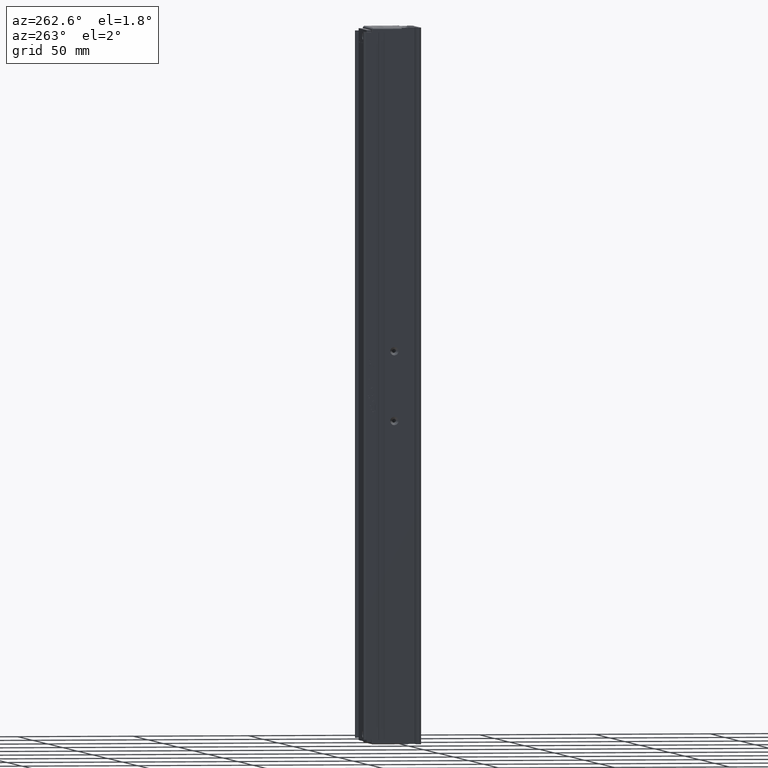
[diagram: clean part render]
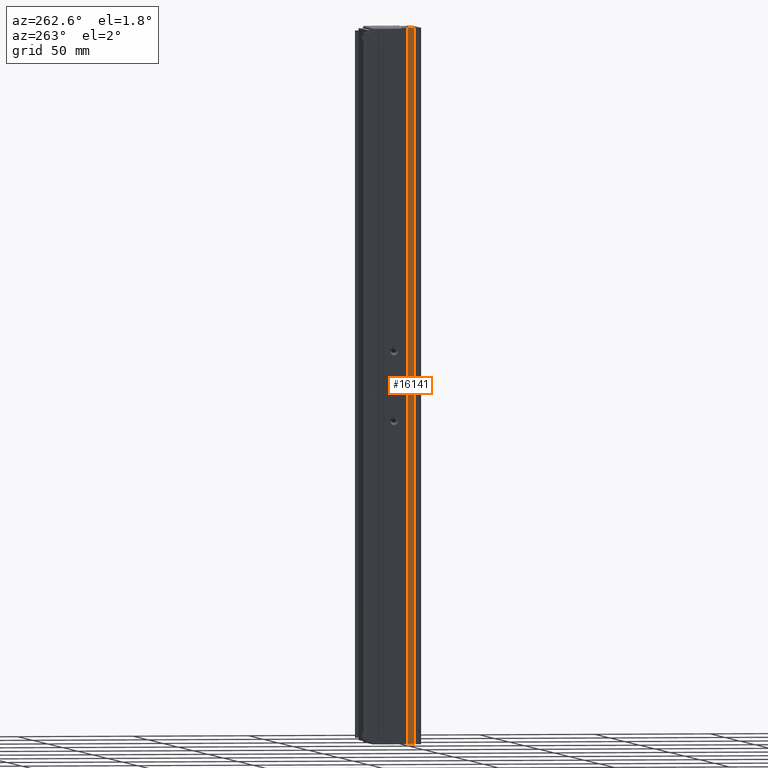
[diagram: same view with one face highlighted and labeled with its STEP entity id]
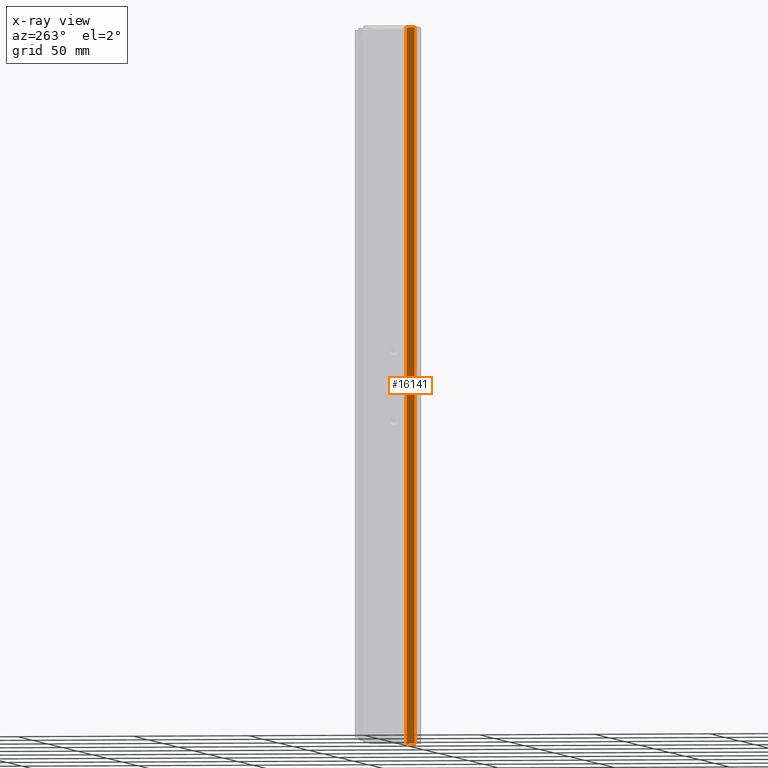
[diagram: x-ray of the same camera — body ghosted, the highlighted face saturated]
A machine part, auxiliary view. The second image highlights one B-rep face of the part: STEP entity #16141.
The next image is the same camera in x-ray: the body ghosted, the highlighted face saturated — about 0% of this face is hidden behind the body in this view.
In plain terms, the highlighted planar face has unit normal (1, 0, -0).
Its self-contained STEP definition (entity closure, byte-faithful):
#336 = LINE ( 'NONE', #51358, #36734 ) ;
#919 = CARTESIAN_POINT ( 'NONE',  ( 30.72537974683543300, 16.49594479660387200, -269.0000000000000000 ) ) ;
#2469 = EDGE_LOOP ( 'NONE', ( #18442, #10062, #55233, #50979 ) ) ;
#6613 = PLANE ( 'NONE',  #39282 ) ;
#10062 = ORIENTED_EDGE ( 'NONE', *, *, #28744, .F. ) ;
#10135 = LINE ( 'NONE', #48252, #59071 ) ;
#11189 = LINE ( 'NONE', #14895, #36469 ) ;
#14608 = EDGE_CURVE ( 'NONE', #52496, #38764, #54399, .T. ) ;
#14895 = CARTESIAN_POINT ( 'NONE',  ( 30.72537974683543300, 7.083797468354437600, -269.0000000000000000 ) ) ;
#16141 = ADVANCED_FACE ( 'NONE', ( #31050 ), #6613, .F. ) ;
#16630 = VECTOR ( 'NONE', #30167, 1000.000000000000000 ) ;
#17494 = EDGE_CURVE ( 'NONE', #22613, #45623, #336, .T. ) ;
#18442 = ORIENTED_EDGE ( 'NONE', *, *, #14608, .F. ) ;
#22613 = VERTEX_POINT ( 'NONE', #919 ) ;
#25678 = CARTESIAN_POINT ( 'NONE',  ( 30.72537974683543300, 7.083797468354437600, 38.99999999999999300 ) ) ;
#28744 = EDGE_CURVE ( 'NONE', #45623, #52496, #10135, .T. ) ;
#30167 = DIRECTION ( 'NONE',  ( -0.0000000000000000000, 0.0000000000000000000, -1.000000000000000000 ) ) ;
#30452 = DIRECTION ( 'NONE',  ( -0.0000000000000000000, 0.0000000000000000000, -1.000000000000000000 ) ) ;
#31050 = FACE_OUTER_BOUND ( 'NONE', #2469, .T. ) ;
#31215 = CARTESIAN_POINT ( 'NONE',  ( 30.72537974683543300, 16.49594479660387200, 38.99999999999999300 ) ) ;
#34009 = CARTESIAN_POINT ( 'NONE',  ( 30.72537974683543300, 12.99594479660387100, 38.99999999999999300 ) ) ;
#36469 = VECTOR ( 'NONE', #48007, 1000.000000000000000 ) ;
#36734 = VECTOR ( 'NONE', #56081, 1000.000000000000000 ) ;
#38176 = CARTESIAN_POINT ( 'NONE',  ( 30.72537974683543300, 12.99594479660387100, -269.0000000000000000 ) ) ;
#38764 = VERTEX_POINT ( 'NONE', #38176 ) ;
#39282 = AXIS2_PLACEMENT_3D ( 'NONE', #25678, #58770, #30452 ) ;
#45623 = VERTEX_POINT ( 'NONE', #31215 ) ;
#48007 = DIRECTION ( 'NONE',  ( -0.0000000000000000000, -1.000000000000000000, 0.0000000000000000000 ) ) ;
#48252 = CARTESIAN_POINT ( 'NONE',  ( 30.72537974683543300, 7.083797468354437600, 38.99999999999999300 ) ) ;
#50979 = ORIENTED_EDGE ( 'NONE', *, *, #60239, .T. ) ;
#51358 = CARTESIAN_POINT ( 'NONE',  ( 30.72537974683543300, 16.49594479660387200, 38.99999999999999300 ) ) ;
#52496 = VERTEX_POINT ( 'NONE', #34009 ) ;
#53021 = DIRECTION ( 'NONE',  ( -0.0000000000000000000, -1.000000000000000000, 0.0000000000000000000 ) ) ;
#53933 = CARTESIAN_POINT ( 'NONE',  ( 30.72537974683543300, 12.99594479660387100, 38.99999999999999300 ) ) ;
#54399 = LINE ( 'NONE', #53933, #16630 ) ;
#55233 = ORIENTED_EDGE ( 'NONE', *, *, #17494, .F. ) ;
#56081 = DIRECTION ( 'NONE',  ( 0.0000000000000000000, -0.0000000000000000000, 1.000000000000000000 ) ) ;
#58770 = DIRECTION ( 'NONE',  ( 1.000000000000000000, 0.0000000000000000000, -0.0000000000000000000 ) ) ;
#59071 = VECTOR ( 'NONE', #53021, 1000.000000000000000 ) ;
#60239 = EDGE_CURVE ( 'NONE', #22613, #38764, #11189, .T. ) ;